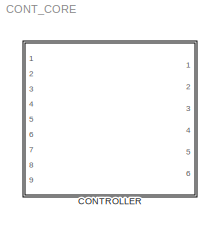
MODEL CONT_CORE
KIND model
CONFIG AbsTol = auto
CONFIG FixedStep = auto
CONFIG MaxStep = auto
CONFIG MinStep = auto
CONFIG RelTol = 1e-3
CONFIG Solver = ode45
CONFIG SolverMode = Auto
CONFIG StartTime = 0.0
CONFIG StopTime = 10.0
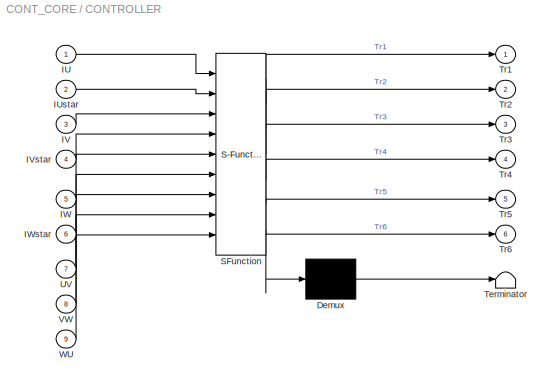
BLOCK [SubSystem] CONTROLLER
  MaskDescription = Stateflow diagram
  MaskDisplay = plot(sf('Private','sfblk','xIcon'),sf('Private','sfblk','yIcon'));text(0.5,0,sf('Private', 'sfblk', 'tIcon'),'HorizontalAl','Center','VerticalAl','Bottom');
  MaskIconFrame = off
  MaskIconOpaque = off
  MaskIconRotate = none
  MaskIconUnits = autoscale
  MaskSelfModifiable = on
  MaskType = Stateflow
  Ports = [9, 6]
  TreatAsAtomicUnit = on
BLOCK [Demux] CONTROLLER/ Demux 
  Outputs = 1
  Ports = [1, 1]
BLOCK [S-Function] CONTROLLER/ SFunction 
  FunctionName = sf_sfun
  PortCounts = [9 7]
  Ports = [9, 7]
  Tag = Stateflow S-Function CONT_CORE 1
BLOCK [Terminator] CONTROLLER/ Terminator 
BLOCK [Inport] CONTROLLER/IU
  PortDimensions = 1
BLOCK [Inport] CONTROLLER/IUstar
  Port = 2
  PortDimensions = 1
BLOCK [Inport] CONTROLLER/IV
  Port = 3
  PortDimensions = 1
BLOCK [Inport] CONTROLLER/IVstar
  Port = 4
  PortDimensions = 1
BLOCK [Inport] CONTROLLER/IW
  Port = 5
  PortDimensions = 1
BLOCK [Inport] CONTROLLER/IWstar
  Port = 6
  PortDimensions = 1
BLOCK [Outport] CONTROLLER/Tr1
BLOCK [Outport] CONTROLLER/Tr2
  Port = 2
BLOCK [Outport] CONTROLLER/Tr3
  Port = 3
BLOCK [Outport] CONTROLLER/Tr4
  Port = 4
BLOCK [Outport] CONTROLLER/Tr5
  Port = 5
BLOCK [Outport] CONTROLLER/Tr6
  Port = 6
BLOCK [Inport] CONTROLLER/UV
  Port = 7
  PortDimensions = 1
BLOCK [Inport] CONTROLLER/VW
  Port = 8
  PortDimensions = 1
BLOCK [Inport] CONTROLLER/WU
  Port = 9
  PortDimensions = 1
LINE CONTROLLER/ Demux :1 -> CONTROLLER/ Terminator :1
LINE CONTROLLER/ SFunction :1 -> CONTROLLER/ Demux :1
LINE CONTROLLER/ SFunction :2 -> CONTROLLER/Tr1:1
LINE CONTROLLER/ SFunction :3 -> CONTROLLER/Tr2:1
LINE CONTROLLER/ SFunction :4 -> CONTROLLER/Tr3:1
LINE CONTROLLER/ SFunction :5 -> CONTROLLER/Tr4:1
LINE CONTROLLER/ SFunction :6 -> CONTROLLER/Tr5:1
LINE CONTROLLER/ SFunction :7 -> CONTROLLER/Tr6:1
LINE CONTROLLER/IU:1 -> CONTROLLER/ SFunction :1
LINE CONTROLLER/IUstar:1 -> CONTROLLER/ SFunction :2
LINE CONTROLLER/IV:1 -> CONTROLLER/ SFunction :3
LINE CONTROLLER/IVstar:1 -> CONTROLLER/ SFunction :4
LINE CONTROLLER/IW:1 -> CONTROLLER/ SFunction :5
LINE CONTROLLER/IWstar:1 -> CONTROLLER/ SFunction :6
LINE CONTROLLER/UV:1 -> CONTROLLER/ SFunction :7
LINE CONTROLLER/VW:1 -> CONTROLLER/ SFunction :8
LINE CONTROLLER/WU:1 -> CONTROLLER/ SFunction :9
CHART CONTROLLER states=18 transitions=25
  STATE_LABEL 'A/'
  STATE_LABEL 'A1/\\nduring: Tr1=0;Tr3=0;Tr4=0;\\nTr2=0;Tr5=0;Tr6=0;'
  STATE_LABEL 'A2/\\nduring: Tr1=0; Tr3=0; Tr4=0; Tr2=0; Tr5=1;\\nTr6=1;'
  STATE_LABEL 'B/'
  STATE_LABEL 'B1/\\nduring: Tr3=0;Tr5=0;Tr4=0;Tr2=0;\\nTr1=0; Tr6=0;'
  STATE_LABEL 'B2/\\nduring:Tr3=0;Tr5=0;Tr4=0;Tr2=0;\\nTr1=1; Tr6=1;'
  STATE_LABEL 'C/'
  STATE_LABEL 'C1/\\nduring: Tr3=0;Tr5=0;Tr4=0;Tr2=0;\\nTr1=0; Tr6=0;'
  STATE_LABEL 'C2/\\nduring: Tr3=0;Tr5=0; Tr4=0; Tr6=0;\\nTr1=1; Tr2=1;'
  STATE_LABEL 'D/'
  STATE_LABEL 'D1/\\nduring: Tr3=0;Tr5=0;Tr4=0;Tr2=0;\\nTr1=0; Tr6=0;'
  STATE_LABEL 'D2/\\nduring: Tr1=0; Tr5=0;Tr4=0; Tr6=0;\\nTr3=1; Tr2=1;'
  STATE_LABEL 'E/'
  STATE_LABEL 'E1/\\nduring: Tr3=0;Tr5=0;Tr4=0;Tr2=0;\\nTr1=0; Tr6=0;'
  STATE_LABEL 'E2/\\nduring: Tr1=0; Tr5=0; Tr6=0; Tr2=0;\\nTr3=1; Tr4=1;'
  STATE_LABEL 'F/'
  STATE_LABEL 'F1/\\nduring: Tr3=0;Tr5=0;Tr4=0;Tr2=0;\\nTr1=0; Tr6=0;'
  STATE_LABEL 'F2/\\nduring: Tr1=0; Tr3=0; Tr6=0; Tr2=0;\\nTr5=1; Tr4=1;'
